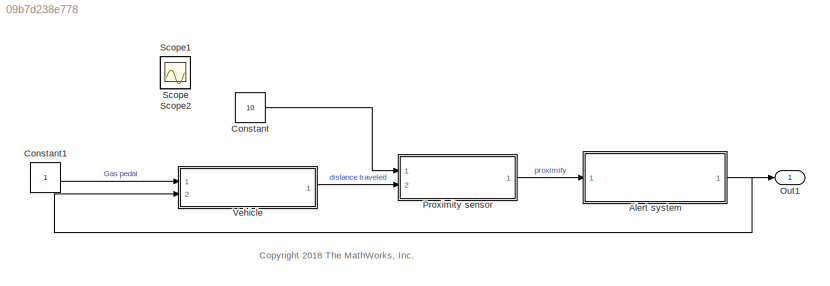
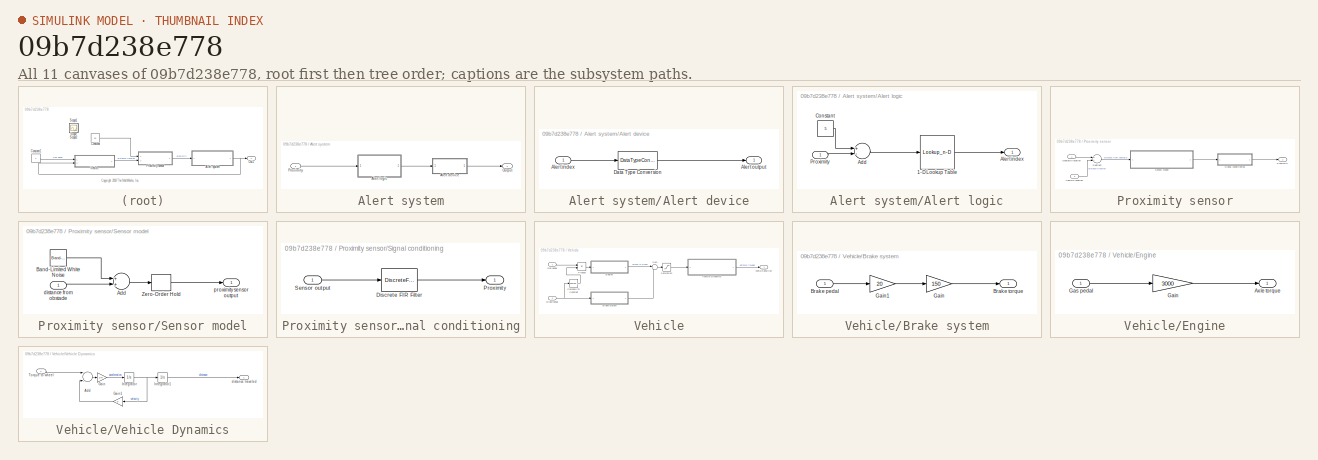
[diagram: thumbnail index - all 11 canvases of the model, root first then tree order]
MODEL slx_09b7d238e778
KIND model
CONFIG AbsTol = auto
CONFIG EnableMultiTasking = off
CONFIG FixedStep = auto
CONFIG MaxStep = auto
CONFIG MinStep = auto
CONFIG PreLoadFcn = m=2000;\nb=500;
CONFIG RelTol = 1e-3
CONFIG SampleTimeConstraint = Unconstrained
CONFIG Solver = VariableStepAuto
CONFIG SolverName = VariableStepAuto
CONFIG StartTime = 0.0
CONFIG StopTime = 10.0
BLOCK [SubSystem] Alert system
  Ports = [1, 1]
  RequestExecContextInheritance = off
BLOCK [SubSystem] Alert system/Alert device
  Ports = [1, 1]
  RequestExecContextInheritance = off
BLOCK [Inport] Alert system/Alert device/Alert index
  IconDisplay = Port number
BLOCK [Outport] Alert system/Alert device/Alert output
  IconDisplay = Port number
  VectorParamsAs1DForOutWhenUnconnected = off
BLOCK [DataTypeConversion] Alert system/Alert device/Data Type Conversion
  OutDataTypeStr = uint8
  RndMeth = Floor
  SaturateOnIntegerOverflow = off
BLOCK [SubSystem] Alert system/Alert logic
  Ports = [1, 1]
  RequestExecContextInheritance = off
BLOCK [Lookup_n-D] Alert system/Alert logic/1-D Lookup Table
  BeginIndexSearchUsingPreviousIndexResult = on
  BreakpointsForDimension1 = 0:0.4:2
  InternalRulePriority = Speed
  InterpMethod = Flat
  NumberOfTableDimensions = 1
  Ports = [1, 1]
  RndMeth = Simplest
  Table = 0:5
BLOCK [Sum] Alert system/Alert logic/Add
  InputSameDT = off
  Inputs = +-
  OutDataTypeStr = Inherit: Inherit via internal rule
  Ports = [2, 1]
  SaturateOnIntegerOverflow = off
BLOCK [Outport] Alert system/Alert logic/Alert index
  IconDisplay = Port number
  VectorParamsAs1DForOutWhenUnconnected = off
BLOCK [Constant] Alert system/Alert logic/Constant
  Value = 5
BLOCK [Inport] Alert system/Alert logic/Proximity
  IconDisplay = Port number
BLOCK [Outport] Alert system/Output
  IconDisplay = Port number
  VectorParamsAs1DForOutWhenUnconnected = off
BLOCK [Inport] Alert system/Proximity
  IconDisplay = Port number
BLOCK [Constant] Constant
  Value = 10
BLOCK [Constant] Constant1
BLOCK [Outport] Out1
  IconDisplay = Port number
  VectorParamsAs1DForOutWhenUnconnected = off
BLOCK [SubSystem] Proximity sensor
  Ports = [2, 1]
  RequestExecContextInheritance = off
BLOCK [Inport] Proximity sensor/Obstacle location
  IconDisplay = Port number
BLOCK [Outport] Proximity sensor/Proximity
  IconDisplay = Port number
  VectorParamsAs1DForOutWhenUnconnected = off
BLOCK [SubSystem] Proximity sensor/Sensor model
  Ports = [1, 1]
  RequestExecContextInheritance = off
BLOCK [Sum] Proximity sensor/Sensor model/Add
  InputSameDT = off
  OutDataTypeStr = Inherit: Inherit via internal rule
  Ports = [2, 1]
  SaturateOnIntegerOverflow = off
BLOCK [Reference] Proximity sensor/Sensor model/Band-Limited White Noise  REF=simulink/Sources/Band-Limited
White Noise
  Ports = [0, 1]
  SourceBlock = simulink/Sources/Band-Limited\nWhite Noise
  SourceProductBaseCode = SL
  SourceProductName = Simulink
  SourceType = Band-Limited White Noise.
BLOCK [ZeroOrderHold] Proximity sensor/Sensor model/Zero-Order Hold
  SampleTime = 0.1
BLOCK [Inport] Proximity sensor/Sensor model/distance from obstacle
  IconDisplay = Port number
BLOCK [Outport] Proximity sensor/Sensor model/proximity sensor output
  IconDisplay = Port number
  VectorParamsAs1DForOutWhenUnconnected = off
BLOCK [SubSystem] Proximity sensor/Signal conditioning
  Ports = [1, 1]
  RequestExecContextInheritance = off
BLOCK [DiscreteFir] Proximity sensor/Signal conditioning/Discrete FIR Filter
  Coefficients = ones(1,10)/10
  InitialStates = 10
  InputPortMap = u0
  OutputPortMap = o0
  Ports = [1, 1]
BLOCK [Outport] Proximity sensor/Signal conditioning/Proximity
  IconDisplay = Port number
  VectorParamsAs1DForOutWhenUnconnected = off
BLOCK [Inport] Proximity sensor/Signal conditioning/Sensor output
  IconDisplay = Port number
BLOCK [Sum] Proximity sensor/Subtract
  InputSameDT = off
  Inputs = +-
  OutDataTypeStr = Inherit: Inherit via internal rule
  Ports = [2, 1]
  SaturateOnIntegerOverflow = off
BLOCK [Inport] Proximity sensor/Vehicle location
  IconDisplay = Port number
  Port = 2
BLOCK [Scope] Scope
  Floating = off
  IOType = viewer
  NumInputPorts = 1
  Ports = []
  ScopeSpecificationString = Simulink.scopes.TimeScopeBlockCfg('CurrentConfiguration', extmgr.ConfigurationSet(extmgr.Configuration('Core','General UI',true),extmgr.Configuration('Core','Source UI',true),extmgr.Configuration('Sources','WiredSimulink',true),extmgr.Configuration('Visuals','Time Domain',true,'SerializedDisplays',{struct('MinYLimReal','-2.28052','MaxYLimReal','20.52468','YLabelReal','','MinYLimMag','0.00000','Max...<+1341ch>
BLOCK [Scope] Scope1
  Floating = off
  IOType = viewer
  NumInputPorts = 1
  Ports = []
  ScopeSpecificationString = Simulink.scopes.TimeScopeBlockCfg('CurrentConfiguration', extmgr.ConfigurationSet(extmgr.Configuration('Core','General UI',true),extmgr.Configuration('Core','Source UI',true),extmgr.Configuration('Sources','WiredSimulink',true,'DataLoggingVariableName','ScopeData1'),extmgr.Configuration('Visuals','Time Domain',true,'SerializedDisplays',{struct('MinYLimReal','-10.15239','MaxYLimReal','12.26881','YL...<+1374ch>
BLOCK [Scope] Scope2
  Floating = off
  IOType = viewer
  NumInputPorts = 1
  Ports = []
  ScopeSpecificationString = Simulink.scopes.TimeScopeBlockCfg('CurrentConfiguration', extmgr.ConfigurationSet(extmgr.Configuration('Core','General UI',true),extmgr.Configuration('Core','Source UI',true),extmgr.Configuration('Sources','WiredSimulink',true,'DataLoggingVariableName','ScopeData2'),extmgr.Configuration('Visuals','Time Domain',true,'SerializedDisplays',{struct('MinYLimReal','-0.625','MaxYLimReal','5.625','YLabelRe...<+1359ch>
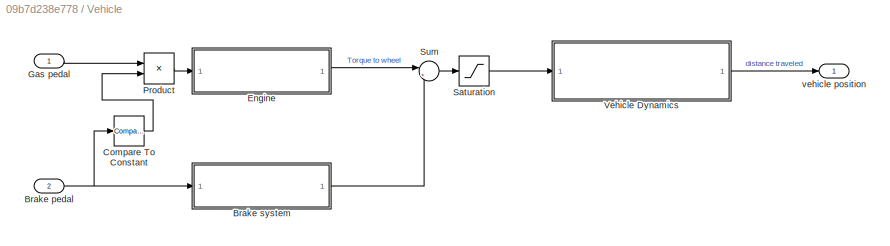
BLOCK [SubSystem] Vehicle
  Ports = [2, 1]
  RequestExecContextInheritance = off
BLOCK [Inport] Vehicle/Brake pedal
  IconDisplay = Port number
  Port = 2
BLOCK [SubSystem] Vehicle/Brake system
  Ports = [1, 1]
  RequestExecContextInheritance = off
BLOCK [Inport] Vehicle/Brake system/Brake pedal
  IconDisplay = Port number
BLOCK [Outport] Vehicle/Brake system/Brake torque
  IconDisplay = Port number
  VectorParamsAs1DForOutWhenUnconnected = off
BLOCK [Gain] Vehicle/Brake system/Gain
  Gain = 150
  OutDataTypeStr = Inherit: Inherit via internal rule
  ParamDataTypeStr = Inherit: Inherit via internal rule
  SaturateOnIntegerOverflow = off
BLOCK [Gain] Vehicle/Brake system/Gain1
  Gain = 20
  OutDataTypeStr = Inherit: Inherit via internal rule
  ParamDataTypeStr = Inherit: Inherit via internal rule
  SaturateOnIntegerOverflow = off
BLOCK [Reference] Vehicle/Compare To Constant  REF=simulink/Logic and Bit
Operations/Compare
To Constant
  Ports = [1, 1]
  SourceBlock = simulink/Logic and Bit\nOperations/Compare\nTo Constant
  SourceProductBaseCode = SL
  SourceProductName = Simulink
  SourceType = Compare To Constant
BLOCK [SubSystem] Vehicle/Engine
  Ports = [1, 1]
  RequestExecContextInheritance = off
BLOCK [Outport] Vehicle/Engine/Axle torque
  IconDisplay = Port number
  VectorParamsAs1DForOutWhenUnconnected = off
BLOCK [Gain] Vehicle/Engine/Gain
  Gain = 3000
  OutDataTypeStr = Inherit: Inherit via internal rule
  ParamDataTypeStr = Inherit: Inherit via internal rule
  SaturateOnIntegerOverflow = off
BLOCK [Inport] Vehicle/Engine/Gas pedal
  IconDisplay = Port number
BLOCK [Inport] Vehicle/Gas pedal
  IconDisplay = Port number
BLOCK [Product] Vehicle/Product
  InputSameDT = off
  OutDataTypeStr = Inherit: Inherit via internal rule
  Ports = [2, 1]
  RndMeth = Floor
  SaturateOnIntegerOverflow = off
BLOCK [Saturate] Vehicle/Saturation
  InputPortMap = u0
  LowerLimit = 0
  Ports = [1, 1]
  UpperLimit = inf
BLOCK [Sum] Vehicle/Sum
  IconShape = round
  InputSameDT = off
  Inputs = |+-
  OutDataTypeStr = Inherit: Inherit via internal rule
  Ports = [2, 1]
  SaturateOnIntegerOverflow = off
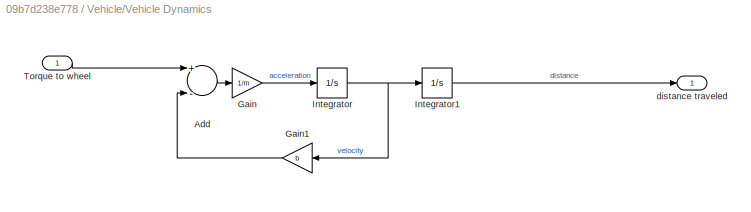
BLOCK [SubSystem] Vehicle/Vehicle Dynamics
  Ports = [1, 1]
  RequestExecContextInheritance = off
BLOCK [Sum] Vehicle/Vehicle Dynamics/Add
  InputSameDT = off
  Inputs = +-
  OutDataTypeStr = Inherit: Inherit via internal rule
  Ports = [2, 1]
  SaturateOnIntegerOverflow = off
BLOCK [Gain] Vehicle/Vehicle Dynamics/Gain
  Gain = 1/m
  OutDataTypeStr = Inherit: Inherit via internal rule
  ParamDataTypeStr = Inherit: Inherit via internal rule
  SaturateOnIntegerOverflow = off
BLOCK [Gain] Vehicle/Vehicle Dynamics/Gain1
  Gain = b
  OutDataTypeStr = Inherit: Inherit via internal rule
  ParamDataTypeStr = Inherit: Inherit via internal rule
  SaturateOnIntegerOverflow = off
BLOCK [Integrator] Vehicle/Vehicle Dynamics/Integrator
  Ports = [1, 1]
BLOCK [Integrator] Vehicle/Vehicle Dynamics/Integrator1
  Ports = [1, 1]
BLOCK [Inport] Vehicle/Vehicle Dynamics/Torque to wheel
  IconDisplay = Port number
BLOCK [Outport] Vehicle/Vehicle Dynamics/distance traveled
  IconDisplay = Port number
  VectorParamsAs1DForOutWhenUnconnected = off
BLOCK [Outport] Vehicle/vehicle position
  IconDisplay = Port number
  VectorParamsAs1DForOutWhenUnconnected = off
ANNOTATION (root): <copyright redacted>
LINE Alert system/Alert device/Alert index:1 -> Alert system/Alert device/Data Type Conversion:1
LINE Alert system/Alert device/Data Type Conversion:1 -> Alert system/Alert device/Alert output:1
LINE Alert system/Alert device:1 -> Alert system/Output:1
LINE Alert system/Alert logic/1-D Lookup Table:1 -> Alert system/Alert logic/Alert index:1
LINE Alert system/Alert logic/Add:1 -> Alert system/Alert logic/1-D Lookup Table:1
LINE Alert system/Alert logic/Constant:1 -> Alert system/Alert logic/Add:1
LINE Alert system/Alert logic/Proximity:1 -> Alert system/Alert logic/Add:2
LINE Alert system/Alert logic:1 -> Alert system/Alert device:1
LINE Alert system/Proximity:1 -> Alert system/Alert logic:1
NET Alert system:1 -> Out1:1, Vehicle:2
LINE Constant1:1 -> Vehicle:1
LINE Constant:1 -> Proximity sensor:1
LINE Proximity sensor/Obstacle location:1 -> Proximity sensor/Subtract:1
LINE Proximity sensor/Sensor model/Add:1 -> Proximity sensor/Sensor model/Zero-Order Hold:1
LINE Proximity sensor/Sensor model/Band-Limited White Noise:1 -> Proximity sensor/Sensor model/Add:1
LINE Proximity sensor/Sensor model/Zero-Order Hold:1 -> Proximity sensor/Sensor model/proximity sensor output:1
LINE Proximity sensor/Sensor model/distance from obstacle:1 -> Proximity sensor/Sensor model/Add:2
LINE Proximity sensor/Sensor model:1 -> Proximity sensor/Signal conditioning:1
LINE Proximity sensor/Signal conditioning/Discrete FIR Filter:1 -> Proximity sensor/Signal conditioning/Proximity:1
LINE Proximity sensor/Signal conditioning/Sensor output:1 -> Proximity sensor/Signal conditioning/Discrete FIR Filter:1
LINE Proximity sensor/Signal conditioning:1 -> Proximity sensor/Proximity:1
LINE Proximity sensor/Subtract:1 -> Proximity sensor/Sensor model:1
LINE Proximity sensor/Vehicle location:1 -> Proximity sensor/Subtract:2
LINE Proximity sensor:1 -> Alert system:1
NET Vehicle/Brake pedal:1 -> Vehicle/Brake system:1, Vehicle/Compare To Constant:1
LINE Vehicle/Brake system/Brake pedal:1 -> Vehicle/Brake system/Gain1:1
LINE Vehicle/Brake system/Gain1:1 -> Vehicle/Brake system/Gain:1
LINE Vehicle/Brake system/Gain:1 -> Vehicle/Brake system/Brake torque:1
LINE Vehicle/Brake system:1 -> Vehicle/Sum:2
LINE Vehicle/Compare To Constant:1 -> Vehicle/Product:2
LINE Vehicle/Engine/Gain:1 -> Vehicle/Engine/Axle torque:1
LINE Vehicle/Engine/Gas pedal:1 -> Vehicle/Engine/Gain:1
LINE Vehicle/Engine:1 -> Vehicle/Sum:1
LINE Vehicle/Gas pedal:1 -> Vehicle/Product:1
LINE Vehicle/Product:1 -> Vehicle/Engine:1
LINE Vehicle/Saturation:1 -> Vehicle/Vehicle Dynamics:1
LINE Vehicle/Sum:1 -> Vehicle/Saturation:1
LINE Vehicle/Vehicle Dynamics/Add:1 -> Vehicle/Vehicle Dynamics/Gain:1
LINE Vehicle/Vehicle Dynamics/Gain1:1 -> Vehicle/Vehicle Dynamics/Add:2
LINE Vehicle/Vehicle Dynamics/Gain:1 -> Vehicle/Vehicle Dynamics/Integrator:1
LINE Vehicle/Vehicle Dynamics/Integrator1:1 -> Vehicle/Vehicle Dynamics/distance traveled:1
NET Vehicle/Vehicle Dynamics/Integrator:1 -> Vehicle/Vehicle Dynamics/Gain1:1, Vehicle/Vehicle Dynamics/Integrator1:1
LINE Vehicle/Vehicle Dynamics/Torque to wheel:1 -> Vehicle/Vehicle Dynamics/Add:1
LINE Vehicle/Vehicle Dynamics:1 -> Vehicle/vehicle position:1
LINE Vehicle:1 -> Proximity sensor:2
note: NET lines group one-source signal fan-out (src -> all destinations, sorted); 1:1 wires keep LINE
